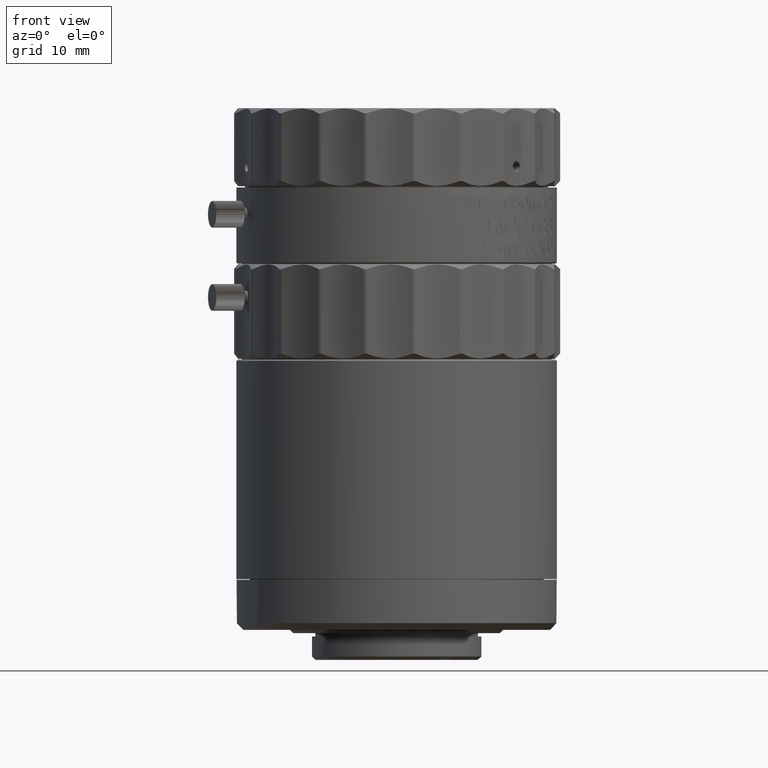
[diagram: clean part render]
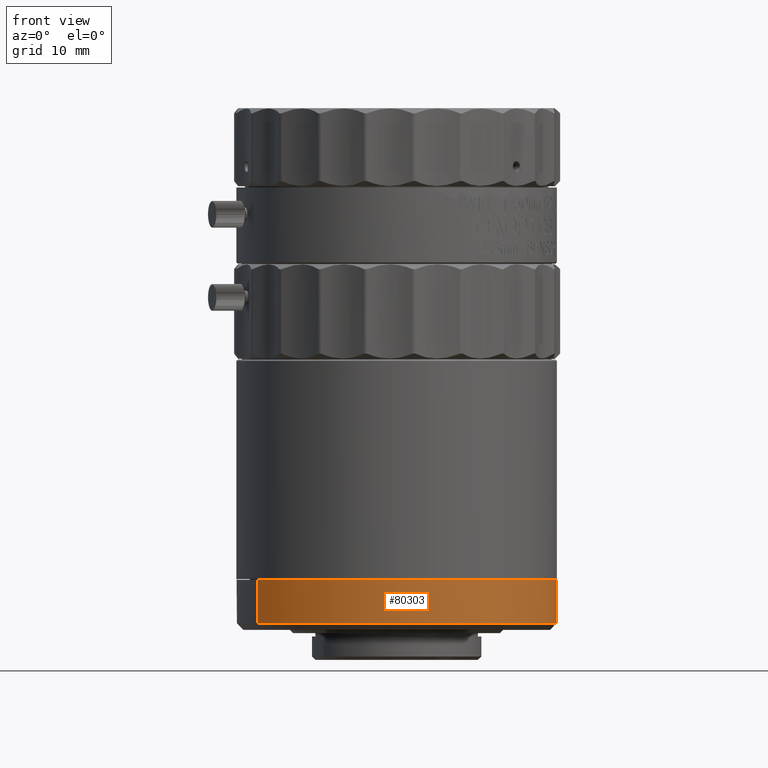
[diagram: same view with one face highlighted and labeled with its STEP entity id]
A machine part, front view. The second image highlights one B-rep face of the part: STEP entity #80303.
In plain terms, the highlighted cylindrical surface (partial cylindrical patch) has radius 24 mm, axis along (0, 0, -1).
Its self-contained STEP definition (entity closure, byte-faithful):
#314 = CARTESIAN_POINT ( 'NONE',  ( 34.63965047231188521, 129.2264394897753164, -58.73000000000011767 ) ) ;
#583 = CARTESIAN_POINT ( 'NONE',  ( 44.78460968617550719, 162.7964473442733890, -65.22999999997897191 ) ) ;
#1117 = CARTESIAN_POINT ( 'NONE',  ( 42.25392677031927491, 134.9825748668013432, -65.22999999997958298 ) ) ;
#4088 = CARTESIAN_POINT ( 'NONE',  ( 8.985096426546798298, 131.9878234755675805, -65.22999999998030773 ) ) ;
#4939 = DIRECTION ( 'NONE',  ( 0.000000000000000000, 0.000000000000000000, -1.000000000000000000 ) ) ;
#5354 = CARTESIAN_POINT ( 'NONE',  ( 47.99970673175100444, 152.3717180108130265, -58.73000000000011056 ) ) ;
#5700 = CARTESIAN_POINT ( 'NONE',  ( 4.111445689330744280, 137.2444338913877857, -65.22999999998043563 ) ) ;
#7662 = ORIENTED_EDGE ( 'NONE', *, *, #27011, .T. ) ;
#9214 = CARTESIAN_POINT ( 'NONE',  ( 48.05134914837169191, 150.7942053737567960, -58.73000000000011767 ) ) ;
#9781 = CARTESIAN_POINT ( 'NONE',  ( 23.99775802524670709, 126.7450981911183447, -58.73000000000010346 ) ) ;
#11006 = CARTESIAN_POINT ( 'NONE',  ( 3.215390304662566479, 138.7964473440023596, -58.73000000000005372 ) ) ;
#11927 = ORIENTED_EDGE ( 'NONE', *, *, #34766, .T. ) ;
#13743 = CARTESIAN_POINT ( 'NONE',  ( 47.23123903475791963, 157.0235601421310037, -58.73000000000009635 ) ) ;
#16497 = CARTESIAN_POINT ( 'NONE',  ( 46.77566782107484045, 143.0675175216460104, -58.73000000000011056 ) ) ;
#17306 = CARTESIAN_POINT ( 'NONE',  ( 47.32001809737585063, 144.5146354116315308, -65.22999999997938403 ) ) ;
#17597 = CARTESIAN_POINT ( 'NONE',  ( 47.84587915806015701, 147.6593391111914002, -58.73000000000011056 ) ) ;
#18999 = CARTESIAN_POINT ( 'NONE',  ( 46.13409157065306232, 160.4590761565036132, -65.22999999997908560 ) ) ;
#21980 = CARTESIAN_POINT ( 'NONE',  ( 37.49827689894470950, 130.8713831873532172, -65.22999999997973930 ) ) ;
#22191 = CARTESIAN_POINT ( 'NONE',  ( 44.78460968631743810, 162.7964473439976132, -58.73000000000005372 ) ) ;
#22319 = CARTESIAN_POINT ( 'NONE',  ( 3.215390304817464795, 138.7964473437340871, -61.97999999999999687 ) ) ;
#23062 = CARTESIAN_POINT ( 'NONE',  ( 34.38942367845159254, 129.0876579594040265, -65.22999999997978193 ) ) ;
#25471 = CARTESIAN_POINT ( 'NONE',  ( 4.000788468059830905, 137.4360978208267454, -58.73000000000011056 ) ) ;
#26582 = CARTESIAN_POINT ( 'NONE',  ( 46.21969124225211090, 141.5903231867438308, -58.73000000000010346 ) ) ;
#27011 = EDGE_CURVE ( 'NONE', #97391, #51987, #34351, .T. ) ;
#27838 = DIRECTION ( 'NONE',  ( 0.8660254037780369396, 0.5000000000110879084, 0.000000000000000000 ) ) ;
#28388 = DIRECTION ( 'NONE',  ( 0.000000000000000000, 0.000000000000000000, -1.000000000000000000 ) ) ;
#29291 = CARTESIAN_POINT ( 'NONE',  ( 23.96001827038578824, 126.7296639596237924, -65.22999999997999510 ) ) ;
#32201 = VERTEX_POINT ( 'NONE', #43549 ) ;
#33318 = CARTESIAN_POINT ( 'NONE',  ( 4.920146631546538529, 136.1531349895267908, -58.73000000000012477 ) ) ;
#33866 = CARTESIAN_POINT ( 'NONE',  ( 43.99672037905921940, 137.4323695605687590, -58.73000000000010346 ) ) ;
#34351 = B_SPLINE_CURVE_WITH_KNOTS ( 'NONE', 3,
 ( #57199, #5700, #47703, #38253, #4088, #99698, #64526, #73995, #56639, #91325, #29291, #72373, #99166, #89693, #23062, #21980, #71840, #63447 ),
 .UNSPECIFIED., .F., .F.,
 ( 4, 2, 2, 2, 2, 2, 2, 2, 4 ),
 ( 0.000000000000000000, 0.04540480587260889433, 0.09080961174521778867, 0.1362144176178266830, 0.1816192234904355773, 0.2270240293630444717, 0.2724288352356533660, 0.3178336411082622881, 0.3632384469808711547 ),
 .UNSPECIFIED. ) ;
#34441 = CARTESIAN_POINT ( 'NONE',  ( 14.79387583823375785, 128.5767560972379329, -58.73000000000010346 ) ) ;
#34766 = EDGE_CURVE ( 'NONE', #51987, #32201, #108607, .T. ) ;
#35554 = CARTESIAN_POINT ( 'NONE',  ( 30.22711279362097514, 127.5652083047320247, -58.73000000000011767 ) ) ;
#38253 = CARTESIAN_POINT ( 'NONE',  ( 7.618899506874596383, 133.1649072016666366, -65.22999999998030773 ) ) ;
#38516 = EDGE_CURVE ( 'NONE', #85857, #97391, #73241, .T. ) ;
#42252 = CARTESIAN_POINT ( 'NONE',  ( 25.57527066230297663, 126.7967406077389825, -58.73000000000011767 ) ) ;
#42510 = CARTESIAN_POINT ( 'NONE',  ( 46.45942379705807923, 141.9162059099236046, -65.22999999997941245 ) ) ;
#42760 = DIRECTION ( 'NONE',  ( 0.000000000000000000, 0.000000000000000000, -1.000000000000000000 ) ) ;
#42803 = CARTESIAN_POINT ( 'NONE',  ( 47.58877183177834524, 146.1020630014283199, -58.73000000000011767 ) ) ;
#43549 = CARTESIAN_POINT ( 'NONE',  ( 44.78460968617550719, 162.7964473442733890, -65.22999999997897191 ) ) ;
#47703 = CARTESIAN_POINT ( 'NONE',  ( 5.182023121404081500, 135.7932674352208267, -65.22999999998039300 ) ) ;
#50062 = B_SPLINE_CURVE_WITH_KNOTS ( 'NONE', 3,
 ( #22191, #56311, #90437, #13743, #82035, #5354, #9214, #17597, #42803, #16497, #26582, #76955, #33866, #68017, #69682, #109905, #51184, #314, #85898, #35554, #59621, #42252, #9781, #68574, #84784, #50651, #34441, #103213, #110449, #60738, #75838, #33318, #25471, #78067 ),
 .UNSPECIFIED., .F., .F.,
 ( 4, 2, 2, 2, 2, 2, 2, 2, 2, 2, 2, 2, 2, 2, 2, 2, 4 ),
 ( 0.5000000000000000000, 0.5312500000000000000, 0.5625000000000000000, 0.5937500000000000000, 0.6250000000000000000, 0.6562500000000000000, 0.6875000000000000000, 0.7187500000000000000, 0.7500000000000000000, 0.7812500000000000000, 0.8125000000000000000, 0.8437500000000000000, 0.8750000000000000000, 0.9062500000000000000, 0.9375000000000000000, 0.9687500000000000000, 1.000000000000000000 ),
 .UNSPECIFIED. ) ;
#50174 = CARTESIAN_POINT ( 'NONE',  ( 3.215390304765589846, 138.7964473438049708, -65.22999999998739895 ) ) ;
#50651 = CARTESIAN_POINT ( 'NONE',  ( 16.27107017313601389, 128.0207795184151394, -58.73000000000011767 ) ) ;
#51184 = CARTESIAN_POINT ( 'NONE',  ( 37.36034951866332676, 130.7972358165698097, -58.73000000000010346 ) ) ;
#51987 = VERTEX_POINT ( 'NONE', #72336 ) ;
#53008 = CYLINDRICAL_SURFACE ( 'NONE', #64787, 23.99999999999959854 ) ;
#53696 = CARTESIAN_POINT ( 'NONE',  ( 44.78460968631743810, 162.7964473439976132, -58.73000000000005372 ) ) ;
#56311 = CARTESIAN_POINT ( 'NONE',  ( 45.57000784971472740, 161.4360978208219137, -58.73000000000011056 ) ) ;
#56358 = ORIENTED_EDGE ( 'NONE', *, *, #81696, .T. ) ;
#56639 = CARTESIAN_POINT ( 'NONE',  ( 18.61470271173270064, 127.3398867654670710, -65.22999999998008036 ) ) ;
#57199 = CARTESIAN_POINT ( 'NONE',  ( 3.215390304765589846, 138.7964473438049708, -65.22999999998739895 ) ) ;
#59621 = CARTESIAN_POINT ( 'NONE',  ( 28.68998655523428809, 127.2068007343182217, -58.73000000000010346 ) ) ;
#60738 = CARTESIAN_POINT ( 'NONE',  ( 8.143529186499080197, 132.7122073935936726, -58.73000000000011767 ) ) ;
#63447 = CARTESIAN_POINT ( 'NONE',  ( 40.26979236664411133, 133.1529256943910013, -65.22999999997952614 ) ) ;
#64526 = CARTESIAN_POINT ( 'NONE',  ( 13.53850499606923741, 129.1222972248852159, -65.22999999998019405 ) ) ;
#64787 = AXIS2_PLACEMENT_3D ( 'NONE', #96091, #28388, #27838 ) ;
#64812 = VERTEX_POINT ( 'NONE', #53696 ) ;
#67918 = VECTOR ( 'NONE', #42760, 1000.000000000000000 ) ;
#68017 = CARTESIAN_POINT ( 'NONE',  ( 42.08423994589635697, 134.9399765350090945, -58.73000000000011056 ) ) ;
#68536 = CARTESIAN_POINT ( 'NONE',  ( 44.78460968616253979, 162.7964473442659141, -61.97999999999999687 ) ) ;
#68574 = CARTESIAN_POINT ( 'NONE',  ( 20.86289176268136814, 126.9505681814297731, -58.73000000000011767 ) ) ;
#69682 = CARTESIAN_POINT ( 'NONE',  ( 41.00528676581572540, 133.7879899489498143, -58.73000000000010346 ) ) ;
#70511 = CARTESIAN_POINT ( 'NONE',  ( 43.92610612531062486, 137.1496638427842356, -65.22999999997956877 ) ) ;
#70935 = FACE_OUTER_BOUND ( 'NONE', #101503, .T. ) ;
#71840 = CARTESIAN_POINT ( 'NONE',  ( 38.95232798522978612, 131.9380394394054861, -65.22999999997968246 ) ) ;
#72336 = CARTESIAN_POINT ( 'NONE',  ( 40.26979236664411133, 133.1529256943910013, -65.22999999997952614 ) ) ;
#72373 = CARTESIAN_POINT ( 'NONE',  ( 27.53472740625543835, 126.9906211004012988, -65.22999999997992404 ) ) ;
#73241 = LINE ( 'NONE', #22319, #105374 ) ;
#73995 = CARTESIAN_POINT ( 'NONE',  ( 16.87344560161236728, 127.8089750279767998, -65.22999999998012299 ) ) ;
#75838 = CARTESIAN_POINT ( 'NONE',  ( 6.991542600439805355, 133.7911605736742615, -58.73000000000010346 ) ) ;
#76955 = CARTESIAN_POINT ( 'NONE',  ( 44.83020034229395634, 138.7727143707399478, -58.73000000000011056 ) ) ;
#77227 = CARTESIAN_POINT ( 'NONE',  ( 48.08475283416331081, 152.5878395751844891, -65.22999999997924192 ) ) ;
#78067 = CARTESIAN_POINT ( 'NONE',  ( 3.215390304662566479, 138.7964473440023596, -58.73000000000005372 ) ) ;
#79147 = LINE ( 'NONE', #68536, #67918 ) ;
#80303 = ADVANCED_FACE ( 'NONE', ( #70935 ), #53008, .T. ) ;
#81696 = EDGE_CURVE ( 'NONE', #64812, #85857, #50062, .T. ) ;
#82035 = CARTESIAN_POINT ( 'NONE',  ( 47.58964660517177947, 155.4864339037443415, -58.73000000000011767 ) ) ;
#82157 = ORIENTED_EDGE ( 'NONE', *, *, #98955, .F. ) ;
#84784 = CARTESIAN_POINT ( 'NONE',  ( 19.30561565291827364, 127.2076755077116417, -58.73000000000010346 ) ) ;
#85857 = VERTEX_POINT ( 'NONE', #11006 ) ;
#85898 = CARTESIAN_POINT ( 'NONE',  ( 33.20198153190569457, 128.5750401675019816, -58.73000000000010346 ) ) ;
#89693 = CARTESIAN_POINT ( 'NONE',  ( 32.73475171411037365, 128.3706636693346752, -65.22999999997982457 ) ) ;
#90437 = CARTESIAN_POINT ( 'NONE',  ( 46.22140717198801241, 159.9984288804157586, -58.73000000000012477 ) ) ;
#91325 = CARTESIAN_POINT ( 'NONE',  ( 22.15806322761556757, 126.8002199331759954, -65.22999999998000931 ) ) ;
#93988 = CARTESIAN_POINT ( 'NONE',  ( 40.26979236664411133, 133.1529256943910013, -65.22999999997952614 ) ) ;
#95108 = CARTESIAN_POINT ( 'NONE',  ( 47.08530636510408840, 157.8924346077276937, -65.22999999997912823 ) ) ;
#96091 = CARTESIAN_POINT ( 'NONE',  ( 23.99999999549000052, 150.7964473440000006, -61.97999999999999687 ) ) ;
#97391 = VERTEX_POINT ( 'NONE', #50174 ) ;
#98143 = ORIENTED_EDGE ( 'NONE', *, *, #38516, .T. ) ;
#98955 = EDGE_CURVE ( 'NONE', #64812, #32201, #79147, .T. ) ;
#99166 = CARTESIAN_POINT ( 'NONE',  ( 29.30733182377384693, 127.3221232882723655, -65.22999999997988141 ) ) ;
#99698 = CARTESIAN_POINT ( 'NONE',  ( 11.94496113695075934, 129.9664761695615312, -65.22999999998020826 ) ) ;
#101503 = EDGE_LOOP ( 'NONE', ( #56358, #98143, #7662, #11927, #82157 ) ) ;
#102928 = CARTESIAN_POINT ( 'NONE',  ( 48.13276988298078862, 149.8510252248660208, -65.22999999997925613 ) ) ;
#103213 = CARTESIAN_POINT ( 'NONE',  ( 11.97626702222992279, 129.9662469971960661, -58.73000000000011767 ) ) ;
#105374 = VECTOR ( 'NONE', #4939, 1000.000000000000000 ) ;
#108607 = B_SPLINE_CURVE_WITH_KNOTS ( 'NONE', 3,
 ( #93988, #1117, #70511, #42510, #17306, #102928, #77227, #95108, #18999, #583 ),
 .UNSPECIFIED., .F., .F.,
 ( 4, 2, 2, 2, 4 ),
 ( 0.3632384469808711547, 0.4316192234907123559, 0.5000000000005535572, 0.5683807765103946474, 0.6367615530202358487 ),
 .UNSPECIFIED. ) ;
#109905 = CARTESIAN_POINT ( 'NONE',  ( 38.64331234996323161, 131.7165939800565582, -58.73000000000011056 ) ) ;
#110449 = CARTESIAN_POINT ( 'NONE',  ( 10.63592221205870025, 130.7997269604308315, -58.73000000000010346 ) ) ;